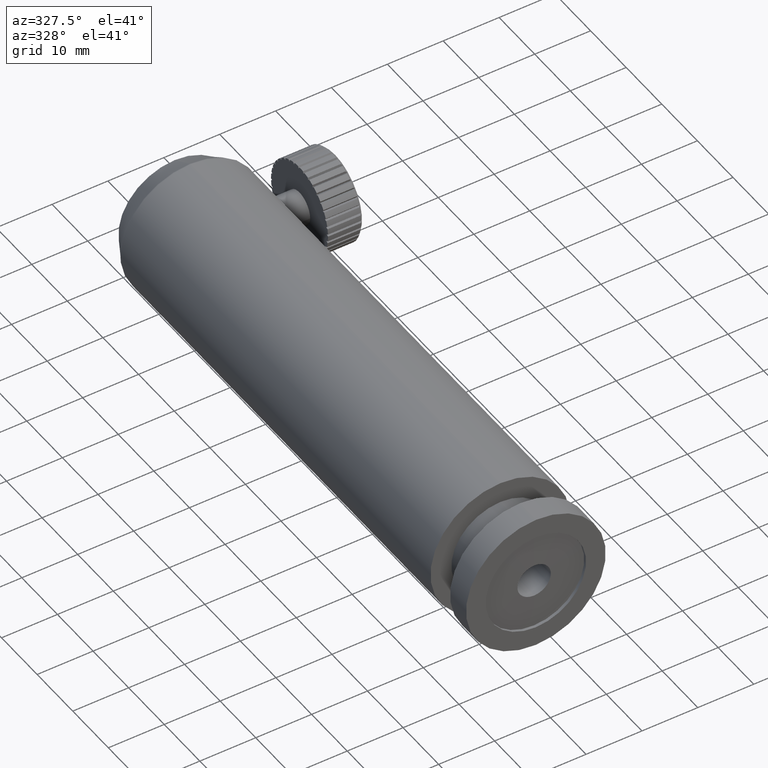
[diagram: clean part render]
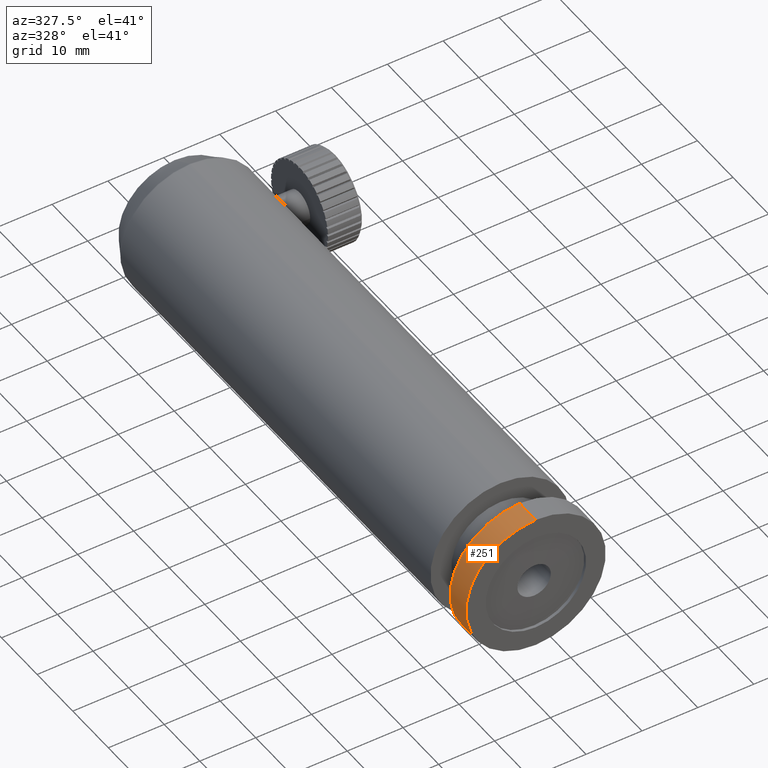
[diagram: same view with one face highlighted and labeled with its STEP entity id]
A machine part, auxiliary view. The second image highlights one B-rep face of the part: STEP entity #251.
In plain terms, the highlighted cylindrical surface (partial cylindrical patch) has radius 12.5 mm, axis along (-0, -1, -0).
Its self-contained STEP definition (entity closure, byte-faithful):
#144 = VERTEX_POINT ( 'NONE', #3842 ) ;
#251 = ADVANCED_FACE ( 'NONE', ( #3402 ), #2334, .T. ) ;
#283 = AXIS2_PLACEMENT_3D ( 'NONE', #3683, #3248, #3602 ) ;
#360 = LINE ( 'NONE', #3227, #1891 ) ;
#385 = CARTESIAN_POINT ( 'NONE',  ( -3.891022268973183300, -11.81361205960983300, 11.50000000000000000 ) ) ;
#598 = CARTESIAN_POINT ( 'NONE',  ( -3.891022268973185000, -16.31361205960983400, -1.000000000000000000 ) ) ;
#789 = EDGE_CURVE ( 'NONE', #2065, #144, #983, .T. ) ;
#972 = DIRECTION ( 'NONE',  ( -0.0000000000000000000, -1.000000000000000000, -0.0000000000000000000 ) ) ;
#983 = CIRCLE ( 'NONE', #3731, 12.50000000000000000 ) ;
#1094 = LINE ( 'NONE', #5179, #3132 ) ;
#1207 = DIRECTION ( 'NONE',  ( 0.0000000000000000000, 0.0000000000000000000, -1.000000000000000000 ) ) ;
#1328 = AXIS2_PLACEMENT_3D ( 'NONE', #598, #3993, #1207 ) ;
#1346 = ORIENTED_EDGE ( 'NONE', *, *, #789, .T. ) ;
#1891 = VECTOR ( 'NONE', #4506, 1000.000000000000000 ) ;
#2065 = VERTEX_POINT ( 'NONE', #385 ) ;
#2334 = CYLINDRICAL_SURFACE ( 'NONE', #283, 12.50000000000000000 ) ;
#2897 = VERTEX_POINT ( 'NONE', #3971 ) ;
#2996 = ORIENTED_EDGE ( 'NONE', *, *, #3378, .F. ) ;
#3004 = EDGE_CURVE ( 'NONE', #2065, #5199, #1094, .T. ) ;
#3050 = CARTESIAN_POINT ( 'NONE',  ( -3.891022268973183300, -16.31361205960983400, 11.50000000000000000 ) ) ;
#3121 = DIRECTION ( 'NONE',  ( -0.0000000000000000000, -1.000000000000000000, -0.0000000000000000000 ) ) ;
#3132 = VECTOR ( 'NONE', #3121, 1000.000000000000000 ) ;
#3227 = CARTESIAN_POINT ( 'NONE',  ( -3.891022268973185000, -24.16253506236343200, -13.50000000000000200 ) ) ;
#3246 = ORIENTED_EDGE ( 'NONE', *, *, #4986, .T. ) ;
#3248 = DIRECTION ( 'NONE',  ( -0.0000000000000000000, -1.000000000000000000, -0.0000000000000000000 ) ) ;
#3269 = EDGE_LOOP ( 'NONE', ( #3527, #1346, #3246, #2996 ) ) ;
#3378 = EDGE_CURVE ( 'NONE', #5199, #2897, #4837, .T. ) ;
#3402 = FACE_OUTER_BOUND ( 'NONE', #3269, .T. ) ;
#3527 = ORIENTED_EDGE ( 'NONE', *, *, #3004, .F. ) ;
#3602 = DIRECTION ( 'NONE',  ( 0.0000000000000000000, 0.0000000000000000000, -1.000000000000000000 ) ) ;
#3683 = CARTESIAN_POINT ( 'NONE',  ( -3.891022268973185000, -24.16253506236343200, -1.000000000000000000 ) ) ;
#3731 = AXIS2_PLACEMENT_3D ( 'NONE', #3853, #972, #5073 ) ;
#3842 = CARTESIAN_POINT ( 'NONE',  ( -3.891022268973185000, -11.81361205960983300, -13.50000000000000200 ) ) ;
#3853 = CARTESIAN_POINT ( 'NONE',  ( -3.891022268973185000, -11.81361205960983300, -1.000000000000000000 ) ) ;
#3971 = CARTESIAN_POINT ( 'NONE',  ( -3.891022268973185000, -16.31361205960983400, -13.50000000000000200 ) ) ;
#3993 = DIRECTION ( 'NONE',  ( -0.0000000000000000000, -1.000000000000000000, -0.0000000000000000000 ) ) ;
#4506 = DIRECTION ( 'NONE',  ( -0.0000000000000000000, -1.000000000000000000, -0.0000000000000000000 ) ) ;
#4837 = CIRCLE ( 'NONE', #1328, 12.50000000000000000 ) ;
#4986 = EDGE_CURVE ( 'NONE', #144, #2897, #360, .T. ) ;
#5073 = DIRECTION ( 'NONE',  ( 0.0000000000000000000, 0.0000000000000000000, -1.000000000000000000 ) ) ;
#5179 = CARTESIAN_POINT ( 'NONE',  ( -3.891022268973183300, -24.16253506236343200, 11.50000000000000000 ) ) ;
#5199 = VERTEX_POINT ( 'NONE', #3050 ) ;